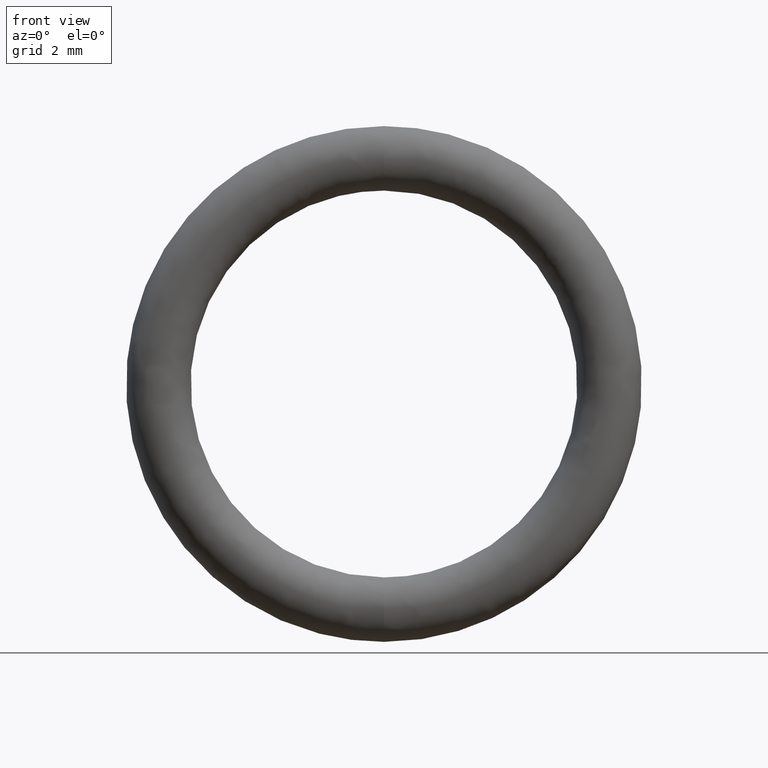
[diagram: clean part render]
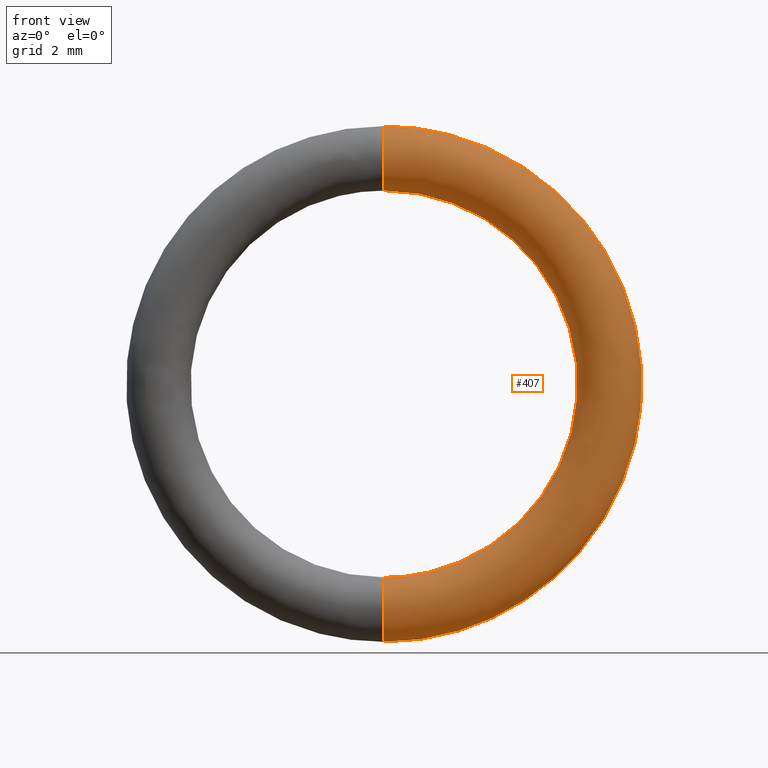
[diagram: same view with one face highlighted and labeled with its STEP entity id]
A machine part, front view. The second image highlights one B-rep face of the part: STEP entity #407.
In plain terms, the highlighted face is a freeform B-spline surface patch.
Its self-contained STEP definition (entity closure, byte-faithful):
#38=CARTESIAN_POINT('',(6.123032E-017,1.000000065129646,-7.999799225598174));
#39=VERTEX_POINT('',#38);
#40=CARTESIAN_POINT('',(6.123032E-017,1.000000065129646,7.999799225598174));
#41=VERTEX_POINT('',#40);
#86=CARTESIAN_POINT('',(6.123032E-017,1.000000065129646,5.999798930573886));
#87=VERTEX_POINT('',#86);
#110=CARTESIAN_POINT('',(6.123032E-017,1.000000065129646,-5.999798930573886));
#111=VERTEX_POINT('',#110);
#204=CARTESIAN_POINT('',(6.123032E-017,1.000000065129646,7.999799225598174));
#205=CARTESIAN_POINT('',(5.772375E-017,0.942731432214856,7.999804015812817));
#206=CARTESIAN_POINT('',(5.071078E-017,0.828197186395062,7.989932565669331));
#207=CARTESIAN_POINT('',(3.952836E-017,0.645568468153060,7.941809235460875));
#208=CARTESIAN_POINT('',(2.775143E-017,0.453230261742252,7.847953467907930));
#209=CARTESIAN_POINT('',(1.780277E-017,0.290750910516458,7.714597586941619));
#210=CARTESIAN_POINT('',(1.036746E-017,0.169319098121262,7.564743578688201));
#211=CARTESIAN_POINT('',(5.906683E-018,0.096466640915268,7.436139944337176));
#212=CARTESIAN_POINT('',(2.513172E-018,0.041044568149610,7.295047693743469));
#213=CARTESIAN_POINT('',(4.220694E-019,0.006893144366927,7.151246033456110));
#214=CARTESIAN_POINT('',(-2.047231E-019,-0.003343493007774,6.999761140191614));
#215=CARTESIAN_POINT('',(4.782183E-019,0.007810156048274,6.848538152575577));
#216=CARTESIAN_POINT('',(2.736097E-018,0.044685330354228,6.684290406651734));
#217=CARTESIAN_POINT('',(7.968326E-018,0.130136932877310,6.488221891996548));
#218=CARTESIAN_POINT('',(1.600814E-017,0.261441392386629,6.313443176946199));
#219=CARTESIAN_POINT('',(2.615658E-017,0.427183444004335,6.172250877375891));
#220=CARTESIAN_POINT('',(3.561127E-017,0.581595399533175,6.086029621173132));
#221=CARTESIAN_POINT('',(4.745546E-017,0.775032036979412,6.018149951725207));
#222=CARTESIAN_POINT('',(5.571975E-017,0.910002624721940,5.999769683618724));
#223=CARTESIAN_POINT('',(6.123032E-017,1.000000065129646,5.999798930573886));
#224=B_SPLINE_CURVE_WITH_KNOTS('',3,(#204,#205,#206,#207,#208,#209,#210,#211,#212,#213,#214,#215,#216,#217,#218,#219,#220,#221,#222,#223),.UNSPECIFIED.,.F.,.U.,(4,1,1,1,1,1,1,1,1,1,1,1,1,1,1,1,1,4),(0.000000048393886,0.171806354481394,0.343610500745760,0.564504549311272,0.809948070478338,0.969486267367048,1.141296162972477,1.251738411875066,1.423554275112014,1.583070621466473,1.705786681026789,1.877601379775426,2.086225605820565,2.343937646429298,2.528017481647827,2.736640513510794,2.871631199604540,3.141612829193202),.UNSPECIFIED.);
#225=EDGE_CURVE('',#41,#87,#224,.T.);
#228=CARTESIAN_POINT('',(6.123032E-017,1.000000065129646,-5.999798930573886));
#229=CARTESIAN_POINT('',(5.772375E-017,0.942731510011613,-5.999794565458409));
#230=CARTESIAN_POINT('',(5.071078E-017,0.828197247126618,-6.009665012932077));
#231=CARTESIAN_POINT('',(3.928506E-017,0.641594905199825,-6.058830819233335));
#232=CARTESIAN_POINT('',(2.821403E-017,0.460785272375216,-6.148457578668931));
#233=CARTESIAN_POINT('',(1.720973E-017,0.281065583608063,-6.292288849324481));
#234=CARTESIAN_POINT('',(9.223065E-018,0.150629057958838,-6.457320347259782));
#235=CARTESIAN_POINT('',(3.821326E-018,0.062409049006896,-6.638134582988915));
#236=CARTESIAN_POINT('',(3.889045E-019,0.006351502830739,-6.831351663590546));
#237=CARTESIAN_POINT('',(-4.455005E-019,-0.007275815592566,-7.032991085567260));
#238=CARTESIAN_POINT('',(1.326318E-018,0.021661133777770,-7.227930568629203));
#239=CARTESIAN_POINT('',(4.420396E-018,0.072192931287458,-7.384103886999297));
#240=CARTESIAN_POINT('',(9.793694E-018,0.159948447119341,-7.555862624394680));
#241=CARTESIAN_POINT('',(1.822147E-017,0.297588953400467,-7.725701336706410));
#242=CARTESIAN_POINT('',(2.910996E-017,0.475417350790433,-7.859265312396026));
#243=CARTESIAN_POINT('',(3.956445E-017,0.646157846709790,-7.940006415820217));
#244=CARTESIAN_POINT('',(4.995963E-017,0.815929564137575,-7.988111081865183));
#245=CARTESIAN_POINT('',(5.722299E-017,0.934553247188000,-7.999807604531839));
#246=CARTESIAN_POINT('',(6.123032E-017,1.000000065129646,-7.999799225598174));
#247=B_SPLINE_CURVE_WITH_KNOTS('',3,(#228,#229,#230,#231,#232,#233,#234,#235,#236,#237,#238,#239,#240,#241,#242,#243,#244,#245,#246),.UNSPECIFIED.,.F.,.U.,(4,1,1,1,1,1,1,1,1,1,1,1,1,1,1,1,4),(0.000000048389992,0.171806354477838,0.343610500742554,0.576778597558806,0.773131606151560,1.030842611569627,1.202650344198948,1.374465893751411,1.632163585016043,1.803963085201322,1.963505441267987,2.123042870257298,2.380754134119892,2.613922765796282,2.785731176230774,2.945272355178031,3.141612829193200),.UNSPECIFIED.);
#248=EDGE_CURVE('',#111,#39,#247,.T.);
#287=CARTESIAN_POINT('',(6.123032E-017,1.000000065129646,5.999798930573886));
#288=CARTESIAN_POINT('',(0.343598049324435,1.000000065129647,5.999828125249786));
#289=CARTESIAN_POINT('',(0.932614422770054,1.000000065129646,5.949057508243413));
#290=CARTESIAN_POINT('',(1.674245597403185,1.000000065129647,5.772921721760320));
#291=CARTESIAN_POINT('',(2.334877692617898,1.000000065129648,5.541114421976934));
#292=CARTESIAN_POINT('',(2.965985984569997,1.000000065129640,5.235489364396499));
#293=CARTESIAN_POINT('',(3.540778316564819,1.000000065129654,4.856488689637322));
#294=CARTESIAN_POINT('',(4.121354443139100,1.000000065129632,4.383023424097880));
#295=CARTESIAN_POINT('',(4.622439059636544,1.000000065129655,3.856726341414461));
#296=CARTESIAN_POINT('',(5.043572456794694,1.000000065129651,3.266425950397035));
#297=CARTESIAN_POINT('',(5.345000202483017,1.000000065129607,2.745580065132709));
#298=CARTESIAN_POINT('',(5.585542508858479,1.000000065129679,2.220408720512541));
#299=CARTESIAN_POINT('',(5.828948754533784,1.000000065129618,1.498591634321473));
#300=CARTESIAN_POINT('',(5.968668454643379,1.000000065129657,0.772920713236293));
#301=CARTESIAN_POINT('',(6.009325717616557,1.000000065129644,0.036872119819441));
#302=CARTESIAN_POINT('',(5.979277991918344,1.000000065129648,-0.662793795992295));
#303=CARTESIAN_POINT('',(5.863529387432481,1.000000065129640,-1.342222613900919));
#304=CARTESIAN_POINT('',(5.651724962232671,1.000000065129662,-2.048204916997430));
#305=CARTESIAN_POINT('',(5.398679354030572,1.000000065129600,-2.648677051667067));
#306=CARTESIAN_POINT('',(5.095783280891556,1.000000065129714,-3.183351686069362));
#307=CARTESIAN_POINT('',(4.759347358314790,1.000000065129634,-3.667334561151465));
#308=CARTESIAN_POINT('',(4.411184960840287,1.000000065129622,-4.081111593245169));
#309=CARTESIAN_POINT('',(3.927675283305844,1.000000065129662,-4.552909106027142));
#310=CARTESIAN_POINT('',(3.431883021186843,1.000000065129640,-4.937385770793118));
#311=CARTESIAN_POINT('',(2.791603250174965,1.000000065129649,-5.326515915135485));
#312=CARTESIAN_POINT('',(2.209877583017588,1.000000065129641,-5.592967118708097));
#313=CARTESIAN_POINT('',(1.543755340422016,1.000000065129654,-5.808487773557152));
#314=CARTESIAN_POINT('',(0.846720683720087,1.000000065129643,-5.958295807503335));
#315=CARTESIAN_POINT('',(0.306785300071044,1.000000065129622,-5.999815414916525));
#316=CARTESIAN_POINT('',(6.123032E-017,1.000000065129646,-5.999798930573886));
#317=B_SPLINE_CURVE_WITH_KNOTS('',3,(#287,#288,#289,#290,#291,#292,#293,#294,#295,#296,#297,#298,#299,#300,#301,#302,#303,#304,#305,#306,#307,#308,#309,#310,#311,#312,#313,#314,#315,#316),.UNSPECIFIED.,.F.,.U.,(4,1,1,1,1,1,1,1,1,1,1,1,1,1,1,1,1,1,1,1,1,1,1,1,1,1,1,4),(1.897359E-009,1.030790432988813,1.767081467052982,2.282483949026648,3.129216631137627,3.865506150166805,4.344094192024476,5.374897826145654,6.037560157149285,6.516148578880815,7.178807566491360,7.767840135482672,8.798644243385832,9.387663280448281,9.976682413342530,10.897045772373151,11.449258621639791,12.185548222133409,12.848211935970260,13.289983977414799,13.952643202871560,14.468045791170020,15.314777520852800,15.830179058185470,16.713725010547151,17.229131053496950,17.928598536154919,18.848953811800151),.UNSPECIFIED.);
#318=EDGE_CURVE('',#87,#111,#317,.T.);
#321=CARTESIAN_POINT('',(6.123032E-017,1.000000065129646,7.999799225598174));
#322=CARTESIAN_POINT('',(0.016361566410701,1.000000065129646,7.999723893699200));
#323=CARTESIAN_POINT('',(0.040899883316255,1.000000065129646,7.999728760947292));
#324=CARTESIAN_POINT('',(0.319043756989875,1.000000065129646,7.997591906028030));
#325=CARTESIAN_POINT('',(0.940503527475793,1.000000065129646,7.962292868805530));
#326=CARTESIAN_POINT('',(1.804953481592338,1.000000065129648,7.812295580998850));
#327=CARTESIAN_POINT('',(2.715861195705122,1.000000065129644,7.542063044688002));
#328=CARTESIAN_POINT('',(3.622243485469432,1.000000065129648,7.160108795937908));
#329=CARTESIAN_POINT('',(4.540294571916983,1.000000065129643,6.617489349067964));
#330=CARTESIAN_POINT('',(5.297392769958785,1.000000065129648,6.015323387514435));
#331=CARTESIAN_POINT('',(5.926560202739167,1.000000065129624,5.393827432612264));
#332=CARTESIAN_POINT('',(6.437947589031598,1.000000065129657,4.774587492585154));
#333=CARTESIAN_POINT('',(6.960967487864950,1.000000065129644,3.981347843358959));
#334=CARTESIAN_POINT('',(7.364118307729410,1.000000065129646,3.174284099523280));
#335=CARTESIAN_POINT('',(7.662118371435864,1.000000065129647,2.341367628683049));
#336=CARTESIAN_POINT('',(7.891754129730940,1.000000065129644,1.436425392688386));
#337=CARTESIAN_POINT('',(7.974189611077263,1.000000065129648,0.768517647842789));
#338=CARTESIAN_POINT('',(7.992766693551936,1.000000065129646,0.335320482387940));
#339=CARTESIAN_POINT('',(7.993377701892962,1.000000065129646,0.318968753104032));
#340=CARTESIAN_POINT('',(7.994428290997602,1.000000065129646,0.294445760639756));
#341=CARTESIAN_POINT('',(7.995181738071119,1.000000065129646,0.269912133432529));
#342=CARTESIAN_POINT('',(7.996084720066363,1.000000065129646,0.245384064363461));
#343=CARTESIAN_POINT('',(7.996689267935925,1.000000065129645,0.220847082451615));
#344=CARTESIAN_POINT('',(7.997675528831073,1.000000065129650,0.188139831887314));
#345=CARTESIAN_POINT('',(7.998247666850951,1.000000065129633,0.155421913201508));
#346=CARTESIAN_POINT('',(7.999018004684173,1.000000065129671,0.114525424915320));
#347=CARTESIAN_POINT('',(8.005087993700686,1.000000065129489,-0.376301918307072));
#348=CARTESIAN_POINT('',(7.949167194347720,1.000000065129692,-1.088575733862277));
#349=CARTESIAN_POINT('',(7.750731778354076,1.000000065129616,-2.025858551486733));
#350=CARTESIAN_POINT('',(7.488777286730620,1.000000065129734,-2.870804888376523));
#351=CARTESIAN_POINT('',(7.104564367484436,1.000000065129426,-3.723397434150975));
#352=CARTESIAN_POINT('',(6.651281798479459,1.000000065130158,-4.464076040523198));
#353=CARTESIAN_POINT('',(6.192868362522132,1.000000065128967,-5.082175190973934));
#354=CARTESIAN_POINT('',(5.602655152215449,1.000000065130045,-5.741492436531766));
#355=CARTESIAN_POINT('',(4.807575209603368,1.000000065129523,-6.427335659784133));
#356=CARTESIAN_POINT('',(3.924304883418637,1.000000065129664,-6.994269908992212));
#357=CARTESIAN_POINT('',(3.141465720031530,1.000000065129641,-7.370405296556141));
#358=CARTESIAN_POINT('',(2.342412431722828,1.000000065129646,-7.664639752552434));
#359=CARTESIAN_POINT('',(1.325306814309135,1.000000065129665,-7.922745769063416));
#360=CARTESIAN_POINT('',(0.490863113258697,1.000000065129636,-7.999851685940342));
#361=CARTESIAN_POINT('',(6.123032E-017,1.000000065129646,-7.999799225598174));
#362=B_SPLINE_CURVE_WITH_KNOTS('',3,(#321,#322,#323,#324,#325,#326,#327,#328,#329,#330,#331,#332,#333,#334,#335,#336,#337,#338,#339,#340,#341,#342,#343,#344,#345,#346,#347,#348,#349,#350,#351,#352,#353,#354,#355,#356,#357,#358,#359,#360,#361),.UNSPECIFIED.,.F.,.U.,(4,1,1,1,1,1,1,1,1,1,1,1,1,1,1,2,1,1,1,1,1,1,1,1,1,1,1,1,1,1,1,1,1,1,1,1,1,4),(-0.000000530903218,0.049084873708590,0.073613953553636,0.834457628583984,1.914355893639542,2.699740039298696,3.681463014281974,4.859533562579276,5.890347381144263,6.577555680080977,7.510195919455416,8.295575296051496,9.424562081530572,10.209943148642880,10.946239439943749,12.222472897757180,12.247018400990820,12.271563904224431,12.296108671865010,12.320653439505611,12.345197412878560,12.369741386251521,12.418819027399969,12.443364941643670,12.492455041429221,13.891392465297550,14.578609494242540,15.363982729373051,16.542057156524709,17.376522791128011,17.965557926791359,18.849112349170039,20.027184707614531,21.107084144625951,21.990638538771879,22.628758283773241,23.659568417782669,25.132149583051390),.UNSPECIFIED.);
#363=EDGE_CURVE('',#41,#39,#362,.T.);
#368=CARTESIAN_POINT('',(-1.134069552193916,1.141239048155380,-7.908880256852221));
#369=CARTESIAN_POINT('',(7.932070538010442,1.141239048155379,-9.208891522456780));
#370=CARTESIAN_POINT('',(7.989617045614407,1.141239048155380,-0.050200905050162));
#371=CARTESIAN_POINT('',(8.047857039271680,1.141239048155379,9.218859993266724));
#372=CARTESIAN_POINT('',(-1.128467580741547,1.141239048155380,7.909681509748387));
#373=CARTESIAN_POINT('',(-1.157327398891200,-0.007269660316679,-8.071078002312534));
#374=CARTESIAN_POINT('',(8.094743876879470,-0.007269660316679,-9.397750298240748));
#375=CARTESIAN_POINT('',(8.153470565936352,-0.007269660316679,-0.051230440629760));
#376=CARTESIAN_POINT('',(8.212904963271514,-0.007269660316679,9.407923205511798));
#377=CARTESIAN_POINT('',(-1.151610540487682,-0.007269660316679,8.071895687549189));
#378=CARTESIAN_POINT('',(-0.992660459638239,0.000019656764277,-6.922708308148187));
#379=CARTESIAN_POINT('',(6.943006953067386,0.000019656764277,-8.060618922143096));
#380=CARTESIAN_POINT('',(6.993377887176516,0.000019656764277,-0.043941267433683));
#381=CARTESIAN_POINT('',(7.044355835364359,0.000019656764277,8.069344407098534));
#382=CARTESIAN_POINT('',(-0.987757007688549,0.000019656764277,6.923409651435867));
#383=CARTESIAN_POINT('',(-0.829954267444939,0.007222177387497,-5.788012655120763));
#384=CARTESIAN_POINT('',(5.804984165177869,0.007222177387496,-6.739409238802705));
#385=CARTESIAN_POINT('',(5.847098839247079,0.007222177387496,-0.036738888982054));
#386=CARTESIAN_POINT('',(5.889721032196627,0.007222177387496,6.746704536408222));
#387=CARTESIAN_POINT('',(-0.825854536432847,0.007222177387497,5.788599041783900));
#388=CARTESIAN_POINT('',(-0.853049262836220,1.141940224943189,-5.949074692919806));
#389=CARTESIAN_POINT('',(5.966518466283366,1.141940224943189,-6.926945626547629));
#390=CARTESIAN_POINT('',(6.009805058181893,1.141940224943188,-0.037761215759569));
#391=CARTESIAN_POINT('',(6.053613291601796,1.141940224943188,6.934443929151356));
#392=CARTESIAN_POINT('',(-0.848835449310737,1.141940224943189,5.949677396864281));
#400=(BOUNDED_SURFACE()B_SPLINE_SURFACE(2,2,((#368,#373,#378,#383,#388),(#369,#374,#379,#384,#389),(#370,#375,#380,#385,#390),(#371,#376,#381,#386,#391),(#372,#377,#382,#387,#392)),.UNSPECIFIED.,.F.,.F.,.U.)B_SPLINE_SURFACE_WITH_KNOTS((3,2,3),(3,2,3),(0.0,14.531440002431401,29.176827322489611),(0.0,1.833016551890831,3.651771499748511),.UNSPECIFIED.)GEOMETRIC_REPRESENTATION_ITEM()RATIONAL_B_SPLINE_SURFACE(((0.981329461430808,0.642872397028757,0.987979841414918,0.645557471375549,0.976104177317516),(0.649013283951108,0.425170895153618,0.653411587602073,0.426946699292753,0.645557483493431),(0.993268708828526,0.650693840178033,1.0,0.653411582215104,0.987979851815201),(0.646313827996523,0.423402472021118,0.650693837681440,0.425170890017048,0.642872401329574),(0.986582732801888,0.646313833662734,0.993268713725490,0.649013281800133,0.981329476599184)))REPRESENTATION_ITEM('')SURFACE());
#401=ORIENTED_EDGE('',*,*,#248,.T.);
#402=ORIENTED_EDGE('',*,*,#363,.F.);
#403=ORIENTED_EDGE('',*,*,#225,.T.);
#404=ORIENTED_EDGE('',*,*,#318,.T.);
#405=EDGE_LOOP('',(#401,#402,#403,#404));
#406=FACE_OUTER_BOUND('',#405,.T.);
#407=ADVANCED_FACE('',(#406),#400,.T.);